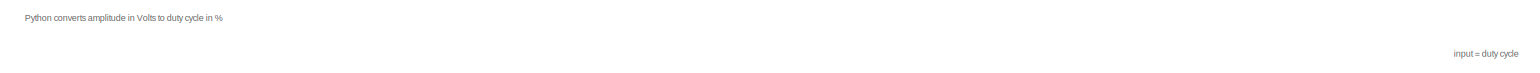
[diagram: root canvas - part 1/9, top center region]
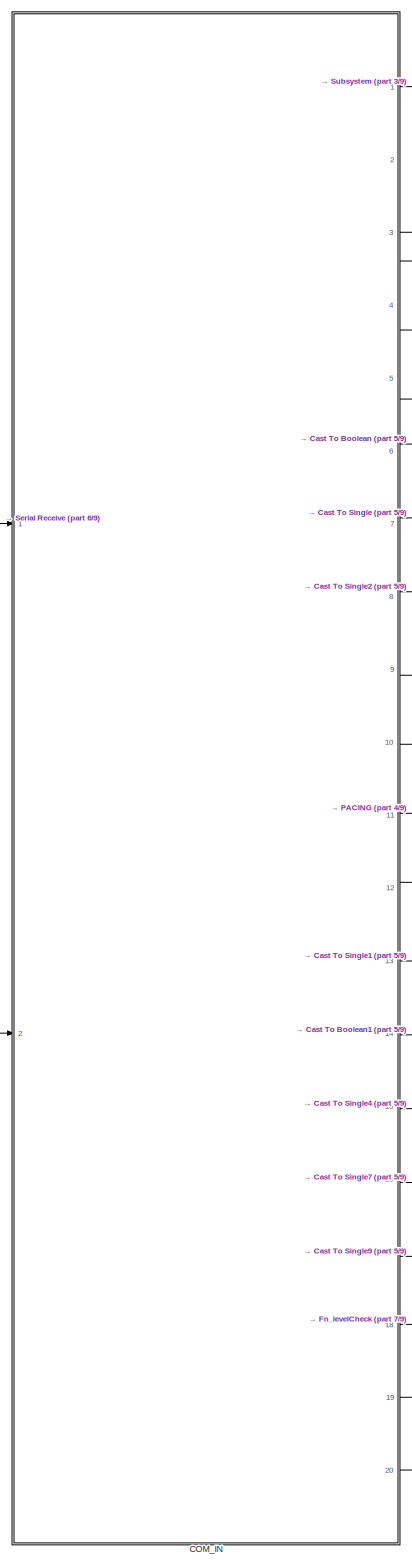
[diagram: root canvas - part 2/9, middle left region]
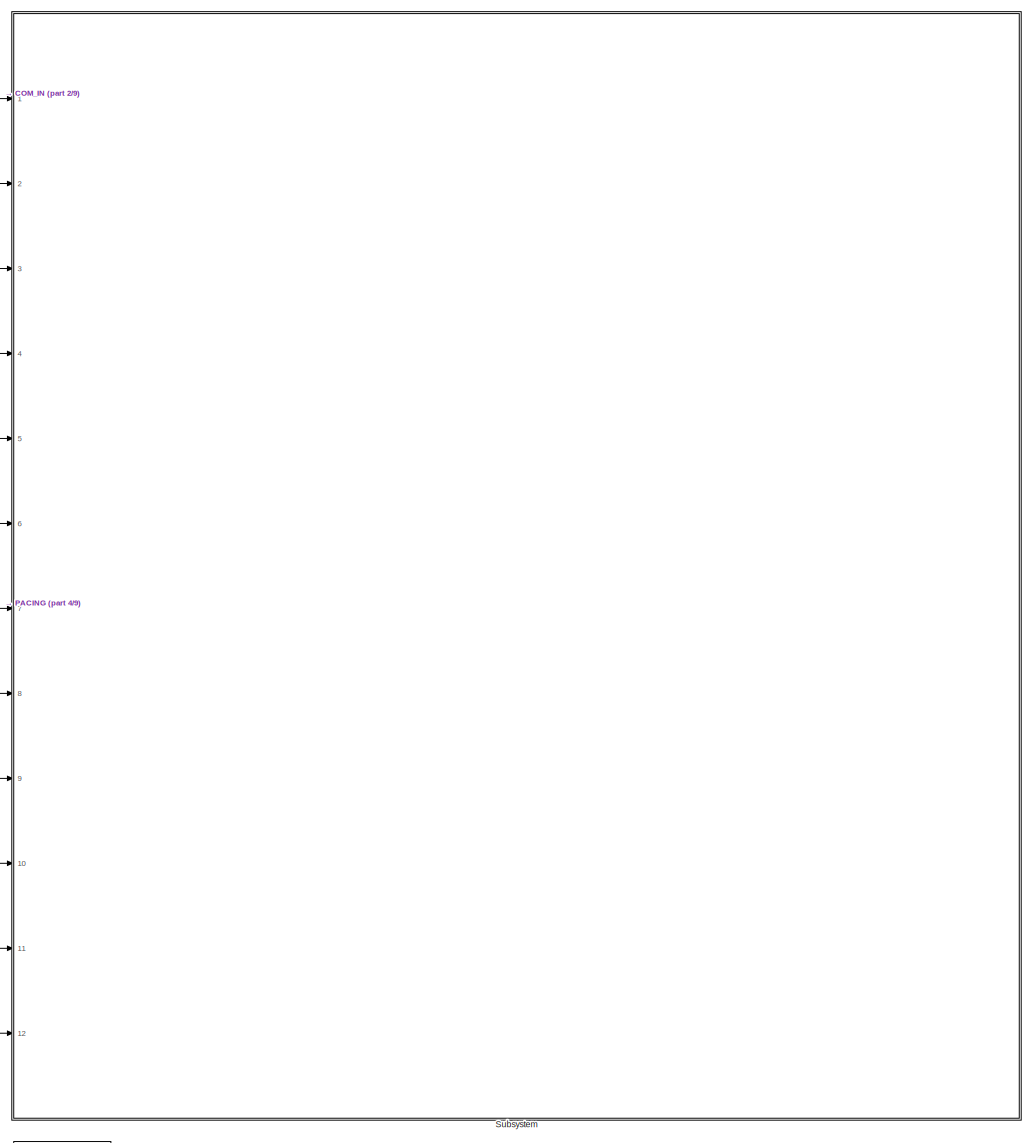
[diagram: root canvas - part 3/9, middle right region]
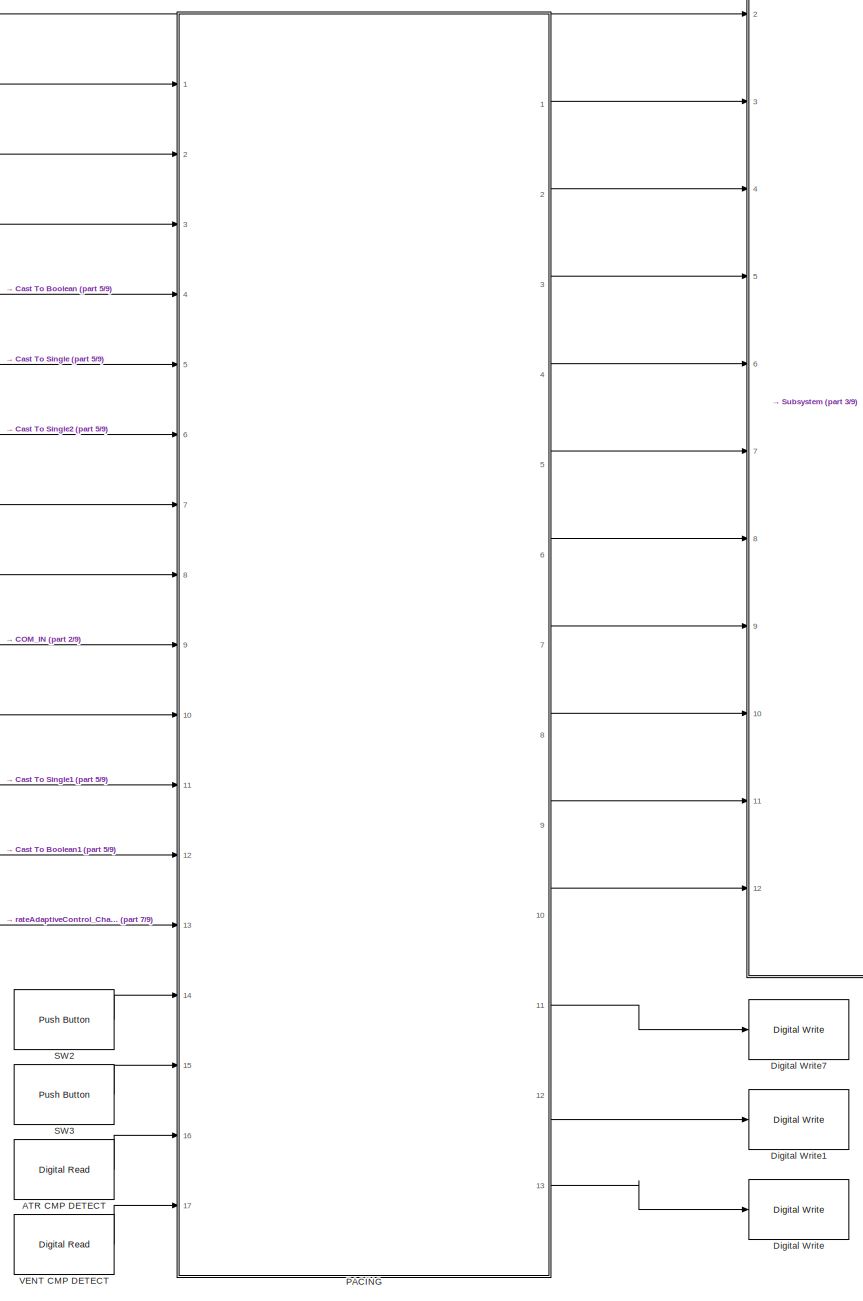
[diagram: root canvas - part 4/9, middle right region]
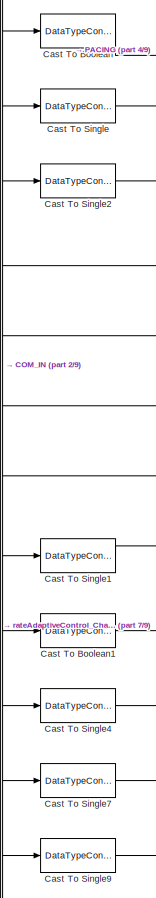
[diagram: root canvas - part 5/9, middle left region]
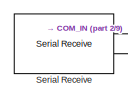
[diagram: root canvas - part 6/9, middle left region]
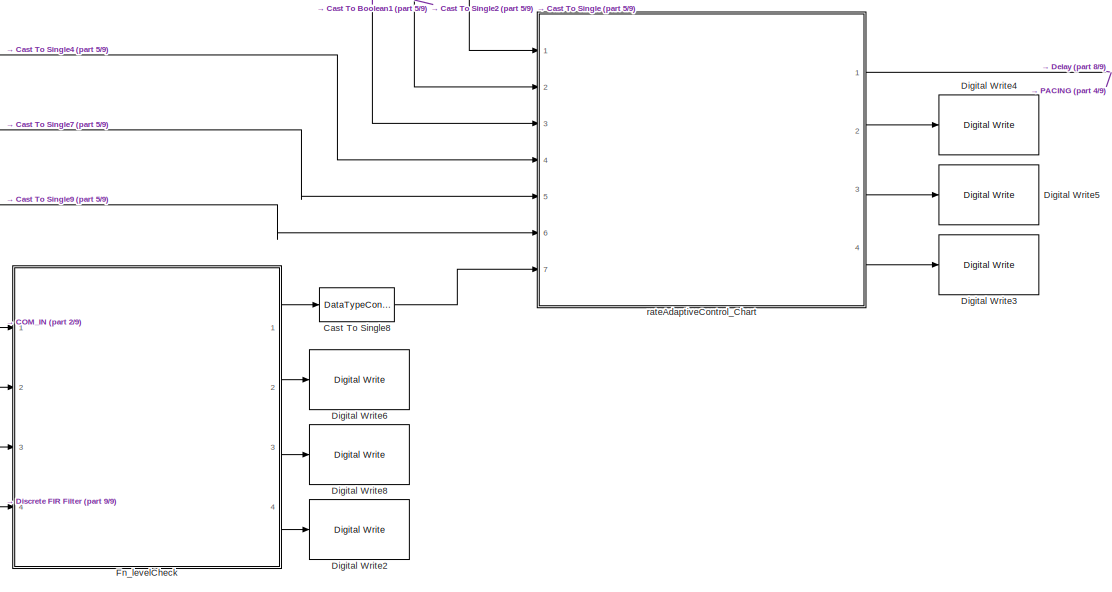
[diagram: root canvas - part 7/9, bottom center region]
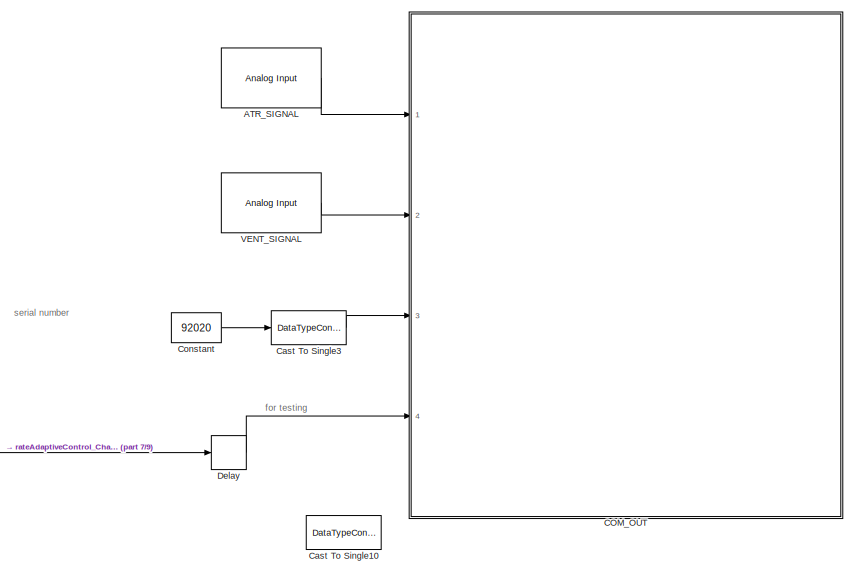
[diagram: root canvas - part 8/9, bottom right region]
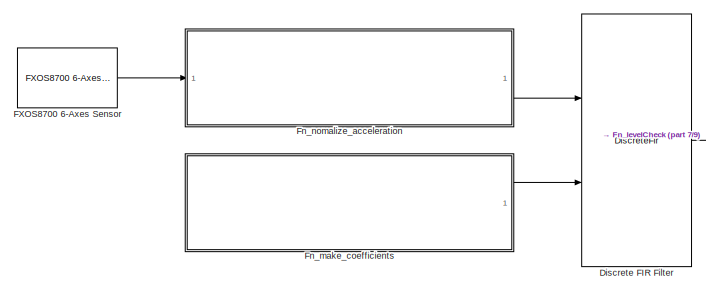
[diagram: root canvas - part 9/9, bottom left region]
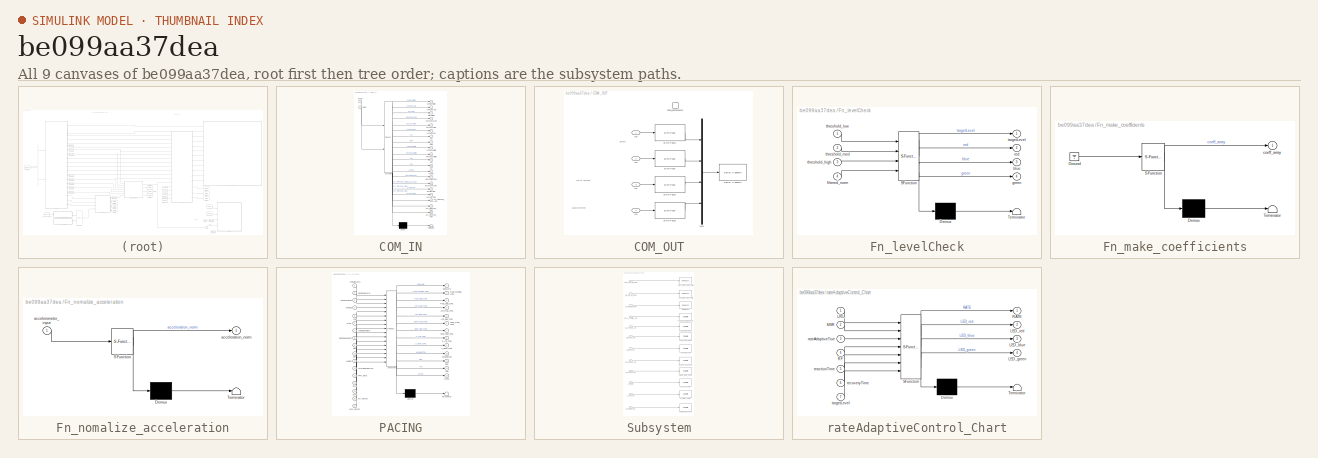
[diagram: thumbnail index - all 9 canvases of the model, root first then tree order]
MODEL slx_be099aa37dea
KIND model
CONFIG AbsTol = auto
CONFIG EnableMultiTasking = on
CONFIG FixedStep = 1e-3
CONFIG MaxStep = auto
CONFIG MinStep = auto
CONFIG RelTol = 1e-3
CONFIG SampleTimeConstraint = Unconstrained
CONFIG Solver = FixedStepAuto
CONFIG SolverName = FixedStepAuto
CONFIG StartTime = 0.0
CONFIG StopTime = 10.0
BLOCK [Reference] ATR CMP DETECT  REF=frdmk64flib/Digital Read
  Ports = [0, 1]
  SourceBlock = frdmk64flib/Digital Read
  SourceProductBaseCode = EC_FRDM_K64F
  SourceType = freedomk64f.DigitalRead
BLOCK [Reference] ATR_SIGNAL  REF=frdmk64flib/Analog Input
  Ports = [0, 1]
  SourceBlock = frdmk64flib/Analog Input
  SourceProductBaseCode = EC_FRDM_K64F
  SourceType = freedomk64f.AnalogInput
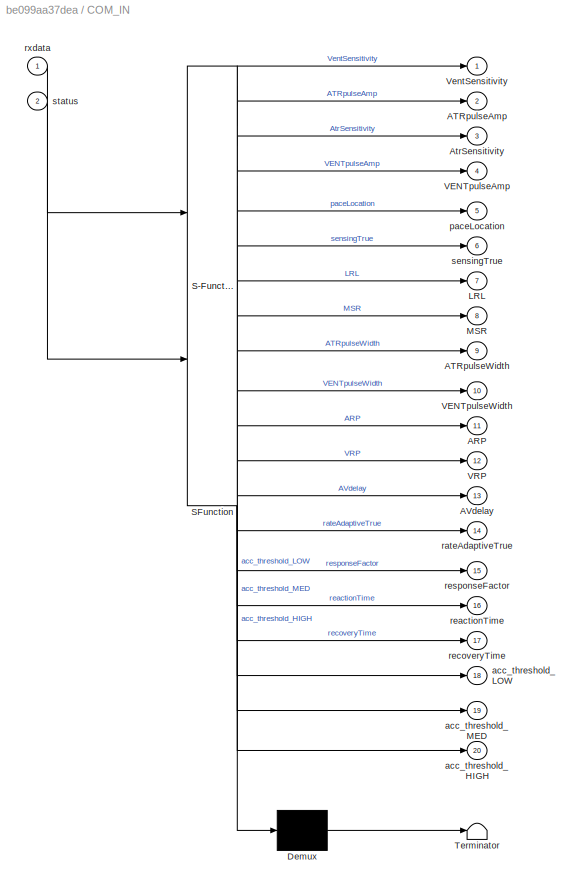
BLOCK [SubSystem] COM_IN
  ErrorFcn = Stateflow.Translate.translate
  PermitHierarchicalResolution = ExplicitOnly
  PortSchema = {"entries":[{"content":{"sides":[{"content":{"connectorIds":["In1","In2"]},"type":"ConnectorPlacement.EquallySpacedRectSide","uuid":"708f6c47-59ba-4c62-823e-aceb534f7d4e"},{"content":{"connectorIds":["Out1","Out3","Out2","Out4","Out5","Out6","Out7","Out8","Out9","Out10","Out11","Out12","Out13","Out14","Out15","Out16","Out17","Out18","Out19","Out20"],"side":"RIGHT"},"type":"ConnectorPlacement.Equal...<+392ch>
  Ports = [2, 20]
  RequestExecContextInheritance = off
  SFBlockType = Chart
  TreatAsAtomicUnit = on
BLOCK [Demux] COM_IN/ Demux 
  Outputs = 1
  Ports = [1, 1]
BLOCK [S-Function] COM_IN/ SFunction 
  EnableBusSupport = on
  FunctionName = sf_sfun
  PortCounts = [2 21]
  Ports = [2, 21]
  SFcnIsStateOwnerBlock = off
  SFunctionDeploymentMode = off
  Tag = Stateflow S-Function 3
BLOCK [Terminator] COM_IN/ Terminator 
BLOCK [Outport] COM_IN/ARP
  Port = 11
BLOCK [Outport] COM_IN/ATRpulseAmp
  Port = 2
BLOCK [Outport] COM_IN/ATRpulseWidth
  Port = 9
BLOCK [Outport] COM_IN/AVdelay
  Port = 13
BLOCK [Outport] COM_IN/AtrSensitivity
  Port = 3
BLOCK [Outport] COM_IN/LRL
  Port = 7
BLOCK [Outport] COM_IN/MSR
  Port = 8
BLOCK [Outport] COM_IN/VENTpulseAmp
  Port = 4
BLOCK [Outport] COM_IN/VENTpulseWidth
  Port = 10
BLOCK [Outport] COM_IN/VRP
  Port = 12
BLOCK [Outport] COM_IN/VentSensitivity
BLOCK [Outport] COM_IN/acc_threshold_HIGH
  Port = 20
BLOCK [Outport] COM_IN/acc_threshold_LOW
  Port = 18
BLOCK [Outport] COM_IN/acc_threshold_MED
  Port = 19
BLOCK [Outport] COM_IN/paceLocation
  Port = 5
BLOCK [Outport] COM_IN/rateAdaptiveTrue
  Port = 14
BLOCK [Outport] COM_IN/reactionTime
  Port = 16
BLOCK [Outport] COM_IN/recoveryTime
  Port = 17
BLOCK [Outport] COM_IN/responseFactor
  Port = 15
BLOCK [Inport] COM_IN/rxdata
BLOCK [Outport] COM_IN/sensingTrue
  Port = 6
BLOCK [Inport] COM_IN/status
  Port = 2
BLOCK [SubSystem] COM_OUT
  Ports = [4, 0, 0, 1]
  RequestExecContextInheritance = off
BLOCK [Reference] COM_OUT/Byte Pack  REF=etargetslib/Byte Pack
  Ports = [1, 1]
  SourceBlock = etargetslib/Byte Pack
  SourceProductBaseCode = ME
  SourceType = Byte pack
BLOCK [Reference] COM_OUT/Byte Pack1  REF=etargetslib/Byte Pack
  Ports = [1, 1]
  SourceBlock = etargetslib/Byte Pack
  SourceProductBaseCode = ME
  SourceType = Byte pack
BLOCK [Reference] COM_OUT/Byte Pack2  REF=etargetslib/Byte Pack
  Ports = [1, 1]
  SourceBlock = etargetslib/Byte Pack
  SourceProductBaseCode = ME
  SourceType = Byte pack
BLOCK [Reference] COM_OUT/Byte Pack3  REF=etargetslib/Byte Pack
  Ports = [1, 1]
  SourceBlock = etargetslib/Byte Pack
  SourceProductBaseCode = ME
  SourceType = Byte pack
BLOCK [Inport] COM_OUT/In1
  Port = 3
BLOCK [Inport] COM_OUT/In2
BLOCK [Inport] COM_OUT/In3
  Port = 2
BLOCK [Inport] COM_OUT/In4
  Port = 4
BLOCK [Mux] COM_OUT/Mux
  DisplayOption = bar
  Ports = [4, 1]
BLOCK [Reference] COM_OUT/Serial Transmit  REF=frdmk64flib/Serial Transmit
  Ports = [1]
  SourceBlock = frdmk64flib/Serial Transmit
  SourceProductBaseCode = EC_FRDM_K64F
  SourceType = freedomk64f.SCIWrite
BLOCK [TriggerPort] COM_OUT/send_parameters
  FunctionName = send_parameters
  IsSimulinkFunction = on
  Ports = []
  StatesWhenEnabling = held
  TriggerType = function-call
  VariantControl = (inherit)
BLOCK [DataTypeConversion] Cast To Boolean
  OutDataTypeStr = boolean
  RndMeth = Floor
  SaturateOnIntegerOverflow = off
BLOCK [DataTypeConversion] Cast To Boolean1
  OutDataTypeStr = boolean
  RndMeth = Floor
  SaturateOnIntegerOverflow = off
BLOCK [DataTypeConversion] Cast To Single
  OutDataTypeStr = single
  RndMeth = Floor
  SaturateOnIntegerOverflow = off
BLOCK [DataTypeConversion] Cast To Single1
  OutDataTypeStr = single
  RndMeth = Floor
  SaturateOnIntegerOverflow = off
BLOCK [DataTypeConversion] Cast To Single10
  Commented = on
  OutDataTypeStr = double
  RndMeth = Floor
  SaturateOnIntegerOverflow = off
BLOCK [DataTypeConversion] Cast To Single2
  OutDataTypeStr = single
  RndMeth = Floor
  SaturateOnIntegerOverflow = off
BLOCK [DataTypeConversion] Cast To Single3
  OutDataTypeStr = double
  RndMeth = Floor
  SaturateOnIntegerOverflow = off
BLOCK [DataTypeConversion] Cast To Single4
  OutDataTypeStr = single
  RndMeth = Floor
  SaturateOnIntegerOverflow = off
BLOCK [DataTypeConversion] Cast To Single7
  OutDataTypeStr = single
  RndMeth = Floor
  SaturateOnIntegerOverflow = off
BLOCK [DataTypeConversion] Cast To Single8
  OutDataTypeStr = single
  RndMeth = Floor
  SaturateOnIntegerOverflow = off
BLOCK [DataTypeConversion] Cast To Single9
  OutDataTypeStr = single
  RndMeth = Floor
  SaturateOnIntegerOverflow = off
BLOCK [Constant] Constant
  Value = 92020
BLOCK [Delay] Delay
  DelayLength = 1
  InputPortMap = u0
  Ports = [1, 1]
BLOCK [Reference] Digital Write  REF=frdmk64flib/Digital Write
  Commented = on
  Ports = [1]
  SourceBlock = frdmk64flib/Digital Write
  SourceProductBaseCode = EC_FRDM_K64F
  SourceType = freedomk64f.DigitalWrite
BLOCK [Reference] Digital Write1  REF=frdmk64flib/Digital Write
  Commented = on
  Ports = [1]
  SourceBlock = frdmk64flib/Digital Write
  SourceProductBaseCode = EC_FRDM_K64F
  SourceType = freedomk64f.DigitalWrite
BLOCK [Reference] Digital Write2  REF=frdmk64flib/Digital Write
  Commented = on
  Ports = [1]
  SourceBlock = frdmk64flib/Digital Write
  SourceProductBaseCode = EC_FRDM_K64F
  SourceType = freedomk64f.DigitalWrite
BLOCK [Reference] Digital Write3  REF=frdmk64flib/Digital Write
  Ports = [1]
  SourceBlock = frdmk64flib/Digital Write
  SourceProductBaseCode = EC_FRDM_K64F
  SourceType = freedomk64f.DigitalWrite
BLOCK [Reference] Digital Write4  REF=frdmk64flib/Digital Write
  Ports = [1]
  SourceBlock = frdmk64flib/Digital Write
  SourceProductBaseCode = EC_FRDM_K64F
  SourceType = freedomk64f.DigitalWrite
BLOCK [Reference] Digital Write5  REF=frdmk64flib/Digital Write
  Ports = [1]
  SourceBlock = frdmk64flib/Digital Write
  SourceProductBaseCode = EC_FRDM_K64F
  SourceType = freedomk64f.DigitalWrite
BLOCK [Reference] Digital Write6  REF=frdmk64flib/Digital Write
  Commented = on
  Ports = [1]
  SourceBlock = frdmk64flib/Digital Write
  SourceProductBaseCode = EC_FRDM_K64F
  SourceType = freedomk64f.DigitalWrite
BLOCK [Reference] Digital Write7  REF=frdmk64flib/Digital Write
  Commented = on
  Ports = [1]
  SourceBlock = frdmk64flib/Digital Write
  SourceProductBaseCode = EC_FRDM_K64F
  SourceType = freedomk64f.DigitalWrite
BLOCK [Reference] Digital Write8  REF=frdmk64flib/Digital Write
  Commented = on
  Ports = [1]
  SourceBlock = frdmk64flib/Digital Write
  SourceProductBaseCode = EC_FRDM_K64F
  SourceType = freedomk64f.DigitalWrite
BLOCK [DiscreteFir] Discrete FIR Filter
  CoefSource = Input port
  Coefficients = [0.05, 0.05, 0.05, 0.05, 0.05, 0.05, 0.05, 0.05, 0.05, 0.05, 0.05, 0.05, 0.05, 0.05, 0.05, 0.05, 0.05, 0.05, 0.05, 0.05]
  InputPortMap = u0,u1
  OutputPortMap = o0
  Ports = [2, 1]
  SampleTime = 0.01
BLOCK [Reference] FXOS8700 6-Axes Sensor  REF=frdmk64flib/FXOS8700 6-Axes Sensor
  Ports = [0, 1]
  SourceBlock = frdmk64flib/FXOS8700 6-Axes Sensor
  SourceProductBaseCode = EC_FRDM_K64F
  SourceType = freedomk64f.fxos8700
BLOCK [SubSystem] Fn_levelCheck
  ErrorFcn = Stateflow.Translate.translate
  PermitHierarchicalResolution = ExplicitOnly
  Ports = [4, 4]
  RequestExecContextInheritance = off
  SFBlockType = MATLAB Function
  TreatAsAtomicUnit = on
BLOCK [Demux] Fn_levelCheck/ Demux 
  Outputs = 1
  Ports = [1, 1]
BLOCK [S-Function] Fn_levelCheck/ SFunction 
  EnableBusSupport = on
  FunctionName = sf_sfun
  PortCounts = [4 5]
  Ports = [4, 5]
  SFcnIsStateOwnerBlock = off
  SFunctionDeploymentMode = off
  Tag = Stateflow S-Function 5
BLOCK [Terminator] Fn_levelCheck/ Terminator 
BLOCK [Outport] Fn_levelCheck/blue
  Port = 3
BLOCK [Inport] Fn_levelCheck/filtered_norm
  Port = 4
BLOCK [Outport] Fn_levelCheck/green
  Port = 4
BLOCK [Outport] Fn_levelCheck/red
  Port = 2
BLOCK [Outport] Fn_levelCheck/targetLevel
BLOCK [Inport] Fn_levelCheck/threshold_high
  Port = 3
BLOCK [Inport] Fn_levelCheck/threshold_low
BLOCK [Inport] Fn_levelCheck/threshold_med
  Port = 2
BLOCK [SubSystem] Fn_make_coefficients
  ErrorFcn = Stateflow.Translate.translate
  PermitHierarchicalResolution = ExplicitOnly
  Ports = [0, 1]
  RequestExecContextInheritance = off
  SFBlockType = MATLAB Function
  TreatAsAtomicUnit = on
BLOCK [Demux] Fn_make_coefficients/ Demux 
  Outputs = 1
  Ports = [1, 1]
BLOCK [Ground] Fn_make_coefficients/ Ground 
BLOCK [S-Function] Fn_make_coefficients/ SFunction 
  EnableBusSupport = on
  FunctionName = sf_sfun
  PortCounts = [1 2]
  Ports = [1, 2]
  SFcnIsStateOwnerBlock = off
  SFunctionDeploymentMode = off
  Tag = Stateflow S-Function 6
BLOCK [Terminator] Fn_make_coefficients/ Terminator 
BLOCK [Outport] Fn_make_coefficients/coeff_array
BLOCK [SubSystem] Fn_nomalize_acceleration
  ErrorFcn = Stateflow.Translate.translate
  PermitHierarchicalResolution = ExplicitOnly
  Ports = [1, 1]
  RequestExecContextInheritance = off
  SFBlockType = MATLAB Function
  TreatAsAtomicUnit = on
BLOCK [Demux] Fn_nomalize_acceleration/ Demux 
  Outputs = 1
  Ports = [1, 1]
BLOCK [S-Function] Fn_nomalize_acceleration/ SFunction 
  EnableBusSupport = on
  FunctionName = sf_sfun
  PortCounts = [1 2]
  Ports = [1, 2]
  SFcnIsStateOwnerBlock = off
  SFunctionDeploymentMode = off
  Tag = Stateflow S-Function 4
BLOCK [Terminator] Fn_nomalize_acceleration/ Terminator 
BLOCK [Outport] Fn_nomalize_acceleration/acceleration_norm
BLOCK [Inport] Fn_nomalize_acceleration/accelerometer_input
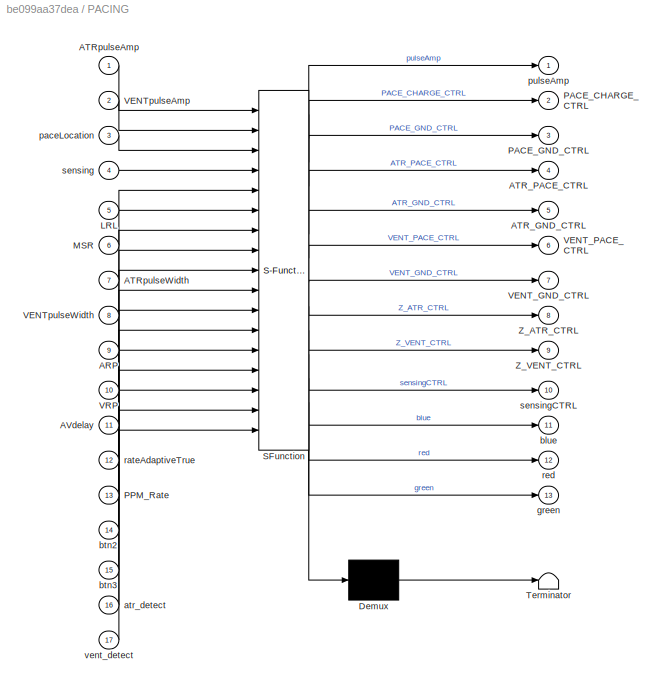
BLOCK [SubSystem] PACING
  ErrorFcn = Stateflow.Translate.translate
  PermitHierarchicalResolution = ExplicitOnly
  Ports = [17, 13]
  RequestExecContextInheritance = off
  SFBlockType = Chart
  TreatAsAtomicUnit = on
BLOCK [Demux] PACING/ Demux 
  Outputs = 1
  Ports = [1, 1]
BLOCK [S-Function] PACING/ SFunction 
  EnableBusSupport = on
  FunctionName = sf_sfun
  PortCounts = [17 14]
  Ports = [17, 14]
  SFcnIsStateOwnerBlock = off
  SFunctionDeploymentMode = off
  Tag = Stateflow S-Function 1
BLOCK [Terminator] PACING/ Terminator 
BLOCK [Inport] PACING/ARP
  Port = 9
BLOCK [Outport] PACING/ATR_GND_CTRL
  Port = 5
BLOCK [Outport] PACING/ATR_PACE_CTRL
  Port = 4
BLOCK [Inport] PACING/ATRpulseAmp
BLOCK [Inport] PACING/ATRpulseWidth
  Port = 7
BLOCK [Inport] PACING/AVdelay
  Port = 11
BLOCK [Inport] PACING/LRL
  Port = 5
BLOCK [Inport] PACING/MSR
  Port = 6
BLOCK [Outport] PACING/PACE_CHARGE_CTRL
  Port = 2
BLOCK [Outport] PACING/PACE_GND_CTRL
  Port = 3
BLOCK [Inport] PACING/PPM_Rate
  Port = 13
BLOCK [Outport] PACING/VENT_GND_CTRL
  Port = 7
BLOCK [Outport] PACING/VENT_PACE_CTRL
  Port = 6
BLOCK [Inport] PACING/VENTpulseAmp
  Port = 2
BLOCK [Inport] PACING/VENTpulseWidth
  Port = 8
BLOCK [Inport] PACING/VRP
  Port = 10
BLOCK [Outport] PACING/Z_ATR_CTRL
  Port = 8
BLOCK [Outport] PACING/Z_VENT_CTRL
  Port = 9
BLOCK [Inport] PACING/atr_detect
  Port = 16
BLOCK [Outport] PACING/blue
  Port = 11
BLOCK [Inport] PACING/btn2
  Port = 14
BLOCK [Inport] PACING/btn3
  Port = 15
BLOCK [Outport] PACING/green
  Port = 13
BLOCK [Inport] PACING/paceLocation
  Port = 3
BLOCK [Outport] PACING/pulseAmp
BLOCK [Inport] PACING/rateAdaptiveTrue
  Port = 12
BLOCK [Outport] PACING/red
  Port = 12
BLOCK [Inport] PACING/sensing
  Port = 4
BLOCK [Outport] PACING/sensingCTRL
  Port = 10
BLOCK [Inport] PACING/vent_detect
  Port = 17
BLOCK [Reference] SW2  REF=frdmk64flib/Push Button
  Ports = [0, 1]
  SourceBlock = frdmk64flib/Push Button
  SourceProductBaseCode = EC_FRDM_K64F
  SourceType = freedomk64f.PushButton
BLOCK [Reference] SW3  REF=frdmk64flib/Push Button
  Ports = [0, 1]
  SourceBlock = frdmk64flib/Push Button
  SourceProductBaseCode = EC_FRDM_K64F
  SourceType = freedomk64f.PushButton
BLOCK [Reference] Serial Receive  REF=frdmk64flib/Serial Receive
  Ports = [0, 2]
  SourceBlock = frdmk64flib/Serial Receive
  SourceProductBaseCode = EC_FRDM_K64F
  SourceType = freedomk64f.SCIRead
BLOCK [SubSystem] Subsystem
  Ports = [12]
  RequestExecContextInheritance = off
BLOCK [Inport] Subsystem/ z_vent_ctrl
  Port = 11
BLOCK [Reference] Subsystem/ATR_CMP_REF_PWM  REF=frdmk64flib/PWM Output
  Ports = [1]
  SourceBlock = frdmk64flib/PWM Output
  SourceProductBaseCode = EC_FRDM_K64F
  SourceType = freedomk64f.PWMOutput
BLOCK [Reference] Subsystem/ATR_GND_CTR  REF=frdmk64flib/Digital Write
  Ports = [1]
  SourceBlock = frdmk64flib/Digital Write
  SourceProductBaseCode = EC_FRDM_K64F
  SourceType = freedomk64f.DigitalWrite
BLOCK [Reference] Subsystem/ATR_PACE_CTRL  REF=frdmk64flib/Digital Write
  Ports = [1]
  SourceBlock = frdmk64flib/Digital Write
  SourceProductBaseCode = EC_FRDM_K64F
  SourceType = freedomk64f.DigitalWrite
BLOCK [Reference] Subsystem/FRONTEND_CTRL  REF=frdmk64flib/Digital Write
  Ports = [1]
  SourceBlock = frdmk64flib/Digital Write
  SourceProductBaseCode = EC_FRDM_K64F
  SourceType = freedomk64f.DigitalWrite
BLOCK [Reference] Subsystem/PACE_CHARGE_CTRL  REF=frdmk64flib/Digital Write
  Ports = [1]
  SourceBlock = frdmk64flib/Digital Write
  SourceProductBaseCode = EC_FRDM_K64F
  SourceType = freedomk64f.DigitalWrite
BLOCK [Reference] Subsystem/PACE_GND_CTRL  REF=frdmk64flib/Digital Write
  Ports = [1]
  SourceBlock = frdmk64flib/Digital Write
  SourceProductBaseCode = EC_FRDM_K64F
  SourceType = freedomk64f.DigitalWrite
BLOCK [Reference] Subsystem/PWM Output  REF=frdmk64flib/PWM Output
  Ports = [1]
  SourceBlock = frdmk64flib/PWM Output
  SourceProductBaseCode = EC_FRDM_K64F
  SourceType = freedomk64f.PWMOutput
BLOCK [Reference] Subsystem/VENT_CMP_REF_PWM  REF=frdmk64flib/PWM Output
  Ports = [1]
  SourceBlock = frdmk64flib/PWM Output
  SourceProductBaseCode = EC_FRDM_K64F
  SourceType = freedomk64f.PWMOutput
BLOCK [Reference] Subsystem/VENT_GND_CTRL  REF=frdmk64flib/Digital Write
  Ports = [1]
  SourceBlock = frdmk64flib/Digital Write
  SourceProductBaseCode = EC_FRDM_K64F
  SourceType = freedomk64f.DigitalWrite
BLOCK [Reference] Subsystem/VENT_PACE_CTRL  REF=frdmk64flib/Digital Write
  Ports = [1]
  SourceBlock = frdmk64flib/Digital Write
  SourceProductBaseCode = EC_FRDM_K64F
  SourceType = freedomk64f.DigitalWrite
BLOCK [Reference] Subsystem/Z_ATR_CTRL  REF=frdmk64flib/Digital Write
  Ports = [1]
  SourceBlock = frdmk64flib/Digital Write
  SourceProductBaseCode = EC_FRDM_K64F
  SourceType = freedomk64f.DigitalWrite
BLOCK [Reference] Subsystem/Z_VENT_CTRL  REF=frdmk64flib/Digital Write
  Ports = [1]
  SourceBlock = frdmk64flib/Digital Write
  SourceProductBaseCode = EC_FRDM_K64F
  SourceType = freedomk64f.DigitalWrite
BLOCK [Inport] Subsystem/atr_cmp_ref_pwm
  Port = 2
BLOCK [Inport] Subsystem/atr_gnd_ctrl
  Port = 7
BLOCK [Inport] Subsystem/atr_pace_ctrl
  Port = 6
BLOCK [Inport] Subsystem/pace_charge_ctrl
  Port = 4
BLOCK [Inport] Subsystem/pace_gnd_ctrl
  Port = 5
BLOCK [Inport] Subsystem/pacing_ref_pwm
  Port = 3
BLOCK [Inport] Subsystem/sensingCTRL
  Port = 12
BLOCK [Inport] Subsystem/vent_cmp_ref_pwm
BLOCK [Inport] Subsystem/vent_gnd_ctrl
  Port = 9
BLOCK [Inport] Subsystem/vent_pace_ctrl
  Port = 8
BLOCK [Inport] Subsystem/z_atr_ctrl
  Port = 10
BLOCK [Reference] VENT CMP DETECT  REF=frdmk64flib/Digital Read
  Ports = [0, 1]
  SourceBlock = frdmk64flib/Digital Read
  SourceProductBaseCode = EC_FRDM_K64F
  SourceType = freedomk64f.DigitalRead
BLOCK [Reference] VENT_SIGNAL  REF=frdmk64flib/Analog Input
  Ports = [0, 1]
  SourceBlock = frdmk64flib/Analog Input
  SourceProductBaseCode = EC_FRDM_K64F
  SourceType = freedomk64f.AnalogInput
BLOCK [SubSystem] rateAdaptiveControl_Chart
  ErrorFcn = Stateflow.Translate.translate
  PermitHierarchicalResolution = ExplicitOnly
  Ports = [7, 4]
  RequestExecContextInheritance = off
  SFBlockType = Chart
  TreatAsAtomicUnit = on
BLOCK [Demux] rateAdaptiveControl_Chart/ Demux 
  Outputs = 1
  Ports = [1, 1]
BLOCK [S-Function] rateAdaptiveControl_Chart/ SFunction 
  EnableBusSupport = on
  FunctionName = sf_sfun
  PortCounts = [7 5]
  Ports = [7, 5]
  SFcnIsStateOwnerBlock = off
  SFunctionDeploymentMode = off
  Tag = Stateflow S-Function 2
BLOCK [Terminator] rateAdaptiveControl_Chart/ Terminator 
BLOCK [Outport] rateAdaptiveControl_Chart/LED_blue
  Port = 3
BLOCK [Outport] rateAdaptiveControl_Chart/LED_green
  Port = 4
BLOCK [Outport] rateAdaptiveControl_Chart/LED_red
  Port = 2
BLOCK [Inport] rateAdaptiveControl_Chart/LRL
BLOCK [Inport] rateAdaptiveControl_Chart/MSR
  Port = 2
BLOCK [Outport] rateAdaptiveControl_Chart/RATE
BLOCK [Inport] rateAdaptiveControl_Chart/RF
  Port = 4
BLOCK [Inport] rateAdaptiveControl_Chart/rateAdaptiveTrue
  Port = 3
BLOCK [Inport] rateAdaptiveControl_Chart/reactionTime
  Port = 5
BLOCK [Inport] rateAdaptiveControl_Chart/recoveryTime
  Port = 6
BLOCK [Inport] rateAdaptiveControl_Chart/targetLevel
  Port = 7
ANNOTATION (root): Python converts amplitude in Volts to duty cycle in %
ANNOTATION (root): serial number
ANNOTATION (root): for testing
ANNOTATION (root): input = duty cycle
ANNOTATION COM_OUT: accelerometer
ANNOTATION COM_OUT: egram
ANNOTATION COM_OUT: serial number
LINE ATR CMP DETECT:1 -> PACING:16
LINE ATR_SIGNAL:1 -> COM_OUT:1
LINE COM_IN:1 -> Subsystem:1
LINE COM_IN:10 -> PACING:8
LINE COM_IN:11 -> PACING:9
LINE COM_IN:12 -> PACING:10
LINE COM_IN:13 -> Cast To Single1:1
LINE COM_IN:14 -> Cast To Boolean1:1
LINE COM_IN:15 -> Cast To Single4:1
LINE COM_IN:16 -> Cast To Single7:1
LINE COM_IN:17 -> Cast To Single9:1
LINE COM_IN:18 -> Fn_levelCheck:1
LINE COM_IN:19 -> Fn_levelCheck:2
LINE COM_IN:2 -> PACING:1
LINE COM_IN:20 -> Fn_levelCheck:3
LINE COM_IN:3 -> Subsystem:2
LINE COM_IN:4 -> PACING:2
LINE COM_IN:5 -> PACING:3
LINE COM_IN:6 -> Cast To Boolean:1
LINE COM_IN:7 -> Cast To Single:1
LINE COM_IN:8 -> Cast To Single2:1
LINE COM_IN:9 -> PACING:7
LINE COM_OUT/Byte Pack1:1 -> COM_OUT/Mux:1
LINE COM_OUT/Byte Pack2:1 -> COM_OUT/Mux:3
LINE COM_OUT/Byte Pack3:1 -> COM_OUT/Mux:4
LINE COM_OUT/Byte Pack:1 -> COM_OUT/Mux:2
LINE COM_OUT/In1:1 -> COM_OUT/Byte Pack2:1
LINE COM_OUT/In2:1 -> COM_OUT/Byte Pack1:1
LINE COM_OUT/In3:1 -> COM_OUT/Byte Pack:1
LINE COM_OUT/In4:1 -> COM_OUT/Byte Pack3:1
LINE COM_OUT/Mux:1 -> COM_OUT/Serial Transmit:1
NET Cast To Boolean1:1 -> PACING:12, rateAdaptiveControl_Chart:3
LINE Cast To Boolean:1 -> PACING:4
LINE Cast To Single1:1 -> PACING:11
NET Cast To Single2:1 -> PACING:6, rateAdaptiveControl_Chart:2
LINE Cast To Single3:1 -> COM_OUT:3
LINE Cast To Single4:1 -> rateAdaptiveControl_Chart:4
LINE Cast To Single7:1 -> rateAdaptiveControl_Chart:5
LINE Cast To Single8:1 -> rateAdaptiveControl_Chart:7
LINE Cast To Single9:1 -> rateAdaptiveControl_Chart:6
NET Cast To Single:1 -> PACING:5, rateAdaptiveControl_Chart:1
LINE Constant:1 -> Cast To Single3:1
LINE Delay:1 -> COM_OUT:4
LINE Discrete FIR Filter:1 -> Fn_levelCheck:4
LINE FXOS8700 6-Axes Sensor:1 -> Fn_nomalize_acceleration:1
LINE Fn_levelCheck:1 -> Cast To Single8:1
LINE Fn_levelCheck:2 -> Digital Write6:1
LINE Fn_levelCheck:3 -> Digital Write8:1
LINE Fn_levelCheck:4 -> Digital Write2:1
LINE Fn_make_coefficients:1 -> Discrete FIR Filter:2
LINE Fn_nomalize_acceleration:1 -> Discrete FIR Filter:1
LINE PACING:1 -> Subsystem:3
LINE PACING:10 -> Subsystem:12
LINE PACING:11 -> Digital Write7:1
LINE PACING:12 -> Digital Write1:1
LINE PACING:13 -> Digital Write:1
LINE PACING:2 -> Subsystem:4
LINE PACING:3 -> Subsystem:5
LINE PACING:4 -> Subsystem:6
LINE PACING:5 -> Subsystem:7
LINE PACING:6 -> Subsystem:8
LINE PACING:7 -> Subsystem:9
LINE PACING:8 -> Subsystem:10
LINE PACING:9 -> Subsystem:11
LINE SW2:1 -> PACING:14
LINE SW3:1 -> PACING:15
LINE Serial Receive:1 -> COM_IN:1
LINE Serial Receive:2 -> COM_IN:2
LINE Subsystem/ z_vent_ctrl:1 -> Subsystem/Z_VENT_CTRL:1
LINE Subsystem/atr_cmp_ref_pwm:1 -> Subsystem/ATR_CMP_REF_PWM:1
LINE Subsystem/atr_gnd_ctrl:1 -> Subsystem/ATR_GND_CTR:1
LINE Subsystem/atr_pace_ctrl:1 -> Subsystem/ATR_PACE_CTRL:1
LINE Subsystem/pace_charge_ctrl:1 -> Subsystem/PACE_CHARGE_CTRL:1
LINE Subsystem/pace_gnd_ctrl:1 -> Subsystem/PACE_GND_CTRL:1
LINE Subsystem/pacing_ref_pwm:1 -> Subsystem/PWM Output:1
LINE Subsystem/sensingCTRL:1 -> Subsystem/FRONTEND_CTRL:1
LINE Subsystem/vent_cmp_ref_pwm:1 -> Subsystem/VENT_CMP_REF_PWM:1
LINE Subsystem/vent_gnd_ctrl:1 -> Subsystem/VENT_GND_CTRL:1
LINE Subsystem/vent_pace_ctrl:1 -> Subsystem/VENT_PACE_CTRL:1
LINE Subsystem/z_atr_ctrl:1 -> Subsystem/Z_ATR_CTRL:1
LINE VENT CMP DETECT:1 -> PACING:17
LINE VENT_SIGNAL:1 -> COM_OUT:2
NET rateAdaptiveControl_Chart:1 -> Delay:1, PACING:13
LINE rateAdaptiveControl_Chart:2 -> Digital Write4:1
LINE rateAdaptiveControl_Chart:3 -> Digital Write5:1
LINE rateAdaptiveControl_Chart:4 -> Digital Write3:1
note: NET lines group one-source signal fan-out (src -> all destinations, sorted); 1:1 wires keep LINE
CHART PACING states=29 transitions=24
  STATE_LABEL 'adaptRATE_vent\n% RE factor need to time a rate (unit ppm)\n%it is depend on LRL and MSR values\n%RATE_out = RATE\nPPM_Rate = adaptiveRATE;'
  STATE_LABEL '<!DOCTYPE HTML PUBLIC "-//W3C//DTD HTML 4.0//EN" "http://www.w3.org/TR/REC-html40/strict.dtd">\n<html><head><meta name="qrichtext" content="1" /><style type="text/css">\np, li { white-space: pre-wrap; }\n</style></head><body align="left" style=" font-family:\'Helvetica\'; font-size:12px; font-weight:400; font-style:normal;">\n<p align="left" style=" margin-top:0px; margin-bottom:0px; margin-left:0px; ma...<+121ch>'  <repeated x5 — deduplicated; at blocks: PACING, COM_IN>
  STATE_LABEL 'SENSING_VENT_TRUE \n%sensing'
  STATE_LABEL 'VENT_CHARGING_AND_DISCHARGE \nentry:\n% for this state paceLocation = 1\n%begin charge and discharge cycle for ventricle\nmsecPerPace = 60000.0/PPM_Rate; %new value in msec\nATR_PACE_CTRL = false;\nVENT_PACE_CTRL = false;\npulseAmp = VENTpulseAmp; % set amplitude\nPACE_CHARGE_CTRL = true;\nPACE_GND_CTRL = true;\nZ_VENT_CTRL = false;\nZ_ATR_CTRL = false\nVENT_GND_CTRL = true;\nATR_GND_CTRL = false;'
  STATE_LABEL '<!DOCTYPE HTML PUBLIC "-//W3C//DTD HTML 4.0//EN" "http://www.w3.org/TR/REC-html40/strict.dtd">\n<html><head><meta name="qrichtext" content="1" /><style type="text/css">\np, li { white-space: pre-wrap; }\n</style></head><body align="left" style=" font-family:\'Helvetica\'; font-size:12px; font-weight:400; font-style:normal;">\n<p align="left" style=" margin-top:0px; margin-bottom:0px; margin-left:0px; ma...<+124ch>'  <repeated x5 — deduplicated; at blocks: PACING, COM_IN>
  STATE_LABEL '[rateAdaptiveTrue == false]{PPM_Rate=LRL}'
  STATE_LABEL 'VENT_PACING\nentry:\n% pace ventricle\nPACE_CHARGE_CTRL = false;\nPACE_GND_CTRL = true;\nVENT_PACE_CTRL = true;\nVENT_GND_CTRL = false;\nZ_VENT_CTRL = false;\nZ_ATR_CTRL = false;\nATR_GND_CTRL = false;\nATR_PACE_CTRL = false;\n'
  STATE_LABEL '<!DOCTYPE HTML PUBLIC "-//W3C//DTD HTML 4.0//EN" "http://www.w3.org/TR/REC-html40/strict.dtd">\n<html><head><meta name="qrichtext" content="1" /><style type="text/css">\np, li { white-space: pre-wrap; }\n</style></head><body align="left" style=" font-family:\'Helvetica\'; font-size:12px; font-weight:400; font-style:normal;">\n<p align="left" style=" margin-top:0px; margin-bottom:0px; margin-left:0px; ma...<+123ch>'
  STATE_LABEL 'ATR_CHARGING_AND_DISCHARGE\nentry:\n% for this state paceLocation = 0\n%begin charge and discharge cycle for atrium\nmsecPerPace = 60000.0/PPM_Rate; %new value for pace timing with msec units\nsensingCTRL = true; %enables the sensing circuitry if sensing = 1\nATR_PACE_CTRL = false;\nVENT_PACE_CTRL = false;\npulseAmp = ATRpulseAmp; % set amplitude\nPACE_CHARGE_CTRL = true;\nPACE_GND_CTRL = true;\nZ_VENT_CTRL ...<+114ch>'
  STATE_LABEL 'ATR_PACING\nentry:\n% pace atrium\nPACE_CHARGE_CTRL = false;\nPACE_GND_CTRL = true;\nVENT_PACE_CTRL = false;\nVENT_GND_CTRL = false;\nZ_VENT_CTRL = false;\nZ_ATR_CTRL = false;\nATR_GND_CTRL = false;\nATR_PACE_CTRL = true;'
  STATE_LABEL '<!DOCTYPE HTML PUBLIC "-//W3C//DTD HTML 4.0//EN" "http://www.w3.org/TR/REC-html40/strict.dtd">\n<html><head><meta name="qrichtext" content="1" /><style type="text/css">\np, li { white-space: pre-wrap; }\n</style></head><body align="left" style=" font-family:\'Helvetica\'; font-size:12px; font-weight:400; font-style:normal;">\n<p align="left" style=" margin-top:0px; margin-bottom:0px; margin-left:0px; ma...<+120ch>'
  STATE_LABEL 'SENSING_ATR_TRUE \n%sensing'
  STATE_LABEL '<!DOCTYPE HTML PUBLIC "-//W3C//DTD HTML 4.0//EN" "http://www.w3.org/TR/REC-html40/strict.dtd">\n<html><head><meta name="qrichtext" content="1" /><style type="text/css">\np, li { white-space: pre-wrap; }\n</style></head><body align="left" style=" font-family:\'Helvetica\'; font-size:12px; font-weight:400; font-style:normal;">\n<p align="left" style=" margin-top:0px; margin-bottom:0px; margin-left:0px; ma...<+123ch>'
  STATE_LABEL 'DUAL_ATR_CHARGING_AND_DISCHARGE_VENT\nentry:\nmsecPerPace = 60000/PPM_Rate;\n% for this state paceLocation = 3\n%begin charge cycle for atrium\nATR_PACE_CTRL = false;\nVENT_PACE_CTRL = false;\npulseAmp = ATRpulseAmp; % set amplitude\nPACE_CHARGE_CTRL = true;\nPACE_GND_CTRL = true;\nZ_VENT_CTRL = false;\nZ_ATR_CTRL = false;\nVENT_GND_CTRL = true;\nATR_GND_CTRL = false;\nblue = true;\nred = false;\ngreen = false;'
  STATE_LABEL 'DUAL_ATR_PACING\nentry:\n% pace atrium\nPACE_CHARGE_CTRL = false;\nPACE_GND_CTRL = true;\nVENT_PACE_CTRL = false;\nVENT_GND_CTRL = false;\nZ_VENT_CTRL = false;\nZ_ATR_CTRL = false;\nATR_GND_CTRL = false;\nATR_PACE_CTRL = true;\n'
  STATE_LABEL 'pace ATR'
  STATE_LABEL 'DUAL_DISCHARGE_ATR_AND_VENT_CHARGING\nentry:\n%begin charge cycle for VENT\nATR_PACE_CTRL = false;\nVENT_PACE_CTRL = false;\npulseAmp = VENTpulseAmp;\nPACE_CHARGE_CTRL = true;\nPACE_GND_CTRL = true;\nZ_VENT_CTRL = false;\nZ_ATR_CTRL = false\nVENT_GND_CTRL = false;\nATR_GND_CTRL = true;\ngreen = true;'
  STATE_LABEL 'pace VENT'
  STATE_LABEL 'DUAL_VENT_PACING\nentry:\n% pace ventricle\nATR_GND_CTRL = false;\nATR_PACE_CTRL = false;\nPACE_CHARGE_CTRL = false;\nPACE_GND_CTRL = true;\nVENT_PACE_CTRL = true;\nVENT_GND_CTRL = false;\nZ_VENT_CTRL = false;\nZ_ATR_CTRL = false;\nred = true;'
  STATE_LABEL 'ATR_CHARGING_AND_DISCHARGE1\nentry:\n% for this state paceLocation = 0\n%begin charge and discharge cycle for atrium\nmsecPerPace = 60000.0/PPM_Rate; %new value for pace timing with msec units\nsensingCTRL = true; %enables the sensing circuitry if sensing = 1\nATR_PACE_CTRL = false;\nVENT_PACE_CTRL = false;\nPACE_CHARGE_CTRL = true;\nPACE_GND_CTRL = true;\nZ_VENT_CTRL = false;\nZ_ATR_CTRL = false;\nVENT_GND_C...<+33ch>'
  STATE_LABEL 'VENT_PACING1\nentry:\n% pace ventricle\nPACE_CHARGE_CTRL = false;\nPACE_GND_CTRL = true;\nVENT_PACE_CTRL = true;\nVENT_GND_CTRL = false;\nZ_VENT_CTRL = false;\nZ_ATR_CTRL = false;\nATR_GND_CTRL = false;\nATR_PACE_CTRL = false;\n'
  STATE_LABEL 'ATR_PACING1\nentry:\n% pace atrium\nPACE_CHARGE_CTRL = false;\nPACE_GND_CTRL = true;\nVENT_PACE_CTRL = false;\nVENT_GND_CTRL = false;\nZ_VENT_CTRL = false;\nZ_ATR_CTRL = false;\nATR_GND_CTRL = false;\nATR_PACE_CTRL = true;'
  STATE_LABEL 'VENT_CHARGING_AND_DISCHARGE1 \nentry:\n% for this state paceLocation = 1\n%begin charge and discharge cycle for ventricle\nmsecPerPace = 60000.0/PPM_Rate; %new value in msec\nATR_PACE_CTRL = false;\nVENT_PACE_CTRL = false;\nPACE_CHARGE_CTRL = true;\nPACE_GND_CTRL = true;\nZ_VENT_CTRL = false;\nZ_ATR_CTRL = false\nVENT_GND_CTRL = true;\nATR_GND_CTRL = false;\n'
CHART rateAdaptiveControl_Chart states=11 transitions=9
  STATE_LABEL 'INITIALIZE\nentry:\npreviousLevel = 0;\nRATE=LRL;'
  STATE_LABEL 'if level = 0\nRATE = LRL\n\nif level = 1\nRATE = LRL + ResponseFactor\n\nif level = 2\nRATE = LRL + 2*ResponseFactor\n\nif level = 3\nRATE = LRL + 3*ResponseFactor'
  STATE_LABEL 'START\nentry:\nreactionTime_remaining = reactionTime;\nrecoveryTime_remaining = recoveryTime;\nLED_red = false;\nLED_blue = false;\nLED_green = true;\nduring:\nif ~rateAdaptiveTrue\n    RATE = LRL;\nend'
  STATE_LABEL 'incrementTime=reactionTime/((TargetLevel - PreviousLevel)*RF)'
  STATE_LABEL 'IF target level < previous level'
  STATE_LABEL 'decrease'
  STATE_LABEL 'IF target level > previous level'
  STATE_LABEL 'Increase'
  STATE_LABEL 'INCREMENT\nentry:\nincrementTime=reactionTime/((target - previousLevel)*RF);\n% time/BPM increase\nLED_green = false;\nif RATE < LRL\n    RATE = LRL;\nelseif RATE > MSR\n    RATE = MSR;\nend\n'
  STATE_LABEL 'DECREMENT\nentry:\ndecrementTime=recoveryTime/((previousLevel - target)*RF);\n% time/BPM increase\nLED_green = false;\nif RATE < LRL\n    RATE = LRL;\nelseif RATE > MSR\n    RATE = MSR;\nend\n'
  STATE_LABEL '[reactionTime_remaining>0]'
CHART COM_IN states=6 transitions=9
  STATE_LABEL "SET_PARAMETERS\nentry:\npaceLocation = rxdata(3); %1 if ATRIUM, 2 if VENT, 3 if BOTH\nsensingTrue = rxdata(4); %1 if sensing, 0 if not\nLRL = rxdata(5);\nMSR =  rxdata(6);\nATRpulseAmp = typecast(rxdata(7:10), 'single');\nVENTpulseAmp = typecast(rxdata(11:14),'single');\nATRpulseWidth = typecast(rxdata(15:18),'single');\nVENTpulseWidth = typecast(rxdata(19:22),'single');\nARP = typecast(rxdata(23:26),'singl...<+552ch>"
  STATE_LABEL 'INITIAL\nentry:\npaceLocation = 1; %1 if atr, 2 if vent, 3 if dual\nsensingTrue = 0; %1 if sensing, 0 if not\nLRL = 60; %ppm\nMSR = 120; %ppm\nATRpulseAmp = 50; %duty cycle\nVENTpulseAmp = 50; %duty cycle\nATRpulseWidth = 10; %msec\nVENTpulseWidth = 10; %msec\nARP = 250; %msec\nVRP = 250; %msec\nAtrSensitivity = 50; %duty cycle\nVentSensitivity = 50; %duty cycle\nAVdelay = 50.0; %msec\nrateAdaptiveTrue = 0; %uin...<+207ch>'
  STATE_LABEL 'STANDBY\n%waiting'
  STATE_LABEL 'ECHO_PARAMETERS\nentry:\nsend_parameters();'
CHART Fn_nomalize_acceleration states=1 transitions=1
  STATE_LABEL 'eML_blk_kernel()'
  STATE_LABEL 'SCRIPT:\nfunction acceleration_norm = fcn(accelerometer_input)\nacceleration_norm = sqrt((accelerometer_input(1))^2+(accelerometer_input(2))^2+(accelerometer_input(3))^2);'
CHART Fn_levelCheck states=1 transitions=1
  STATE_LABEL 'eML_blk_kernel()'
  STATE_LABEL 'SCRIPT:\nfunction [targetLevel, red, blue, green] = fcn(threshold_low,threshold_med,threshold_high, filtered_norm)\nred = false;\nblue = false;\ngreen = false;\n\nif filtered_norm >= threshold_high\n    targetLevel = 3;\n    red = true;\n\nelseif filtered_norm >= threshold_med\n    targetLevel = 2;\n    green = true;\n    \nelseif filtered_norm >= threshold_low\n    targetLevel = 1;\n    blue = true;\n    \nelse\n  ...<+81ch>'
CHART Fn_make_coefficients states=1 transitions=1
  STATE_LABEL 'eML_blk_kernel()'
  STATE_LABEL 'SCRIPT:\nfunction coeff_array = fcn()\ncoeff_array= ones(500,1)/500;'
CHART  states=0 transitions=0
CHART  states=0 transitions=0
CHART  states=0 transitions=0
CHART  states=0 transitions=0
CHART  states=0 transitions=0
CHART  states=0 transitions=0
